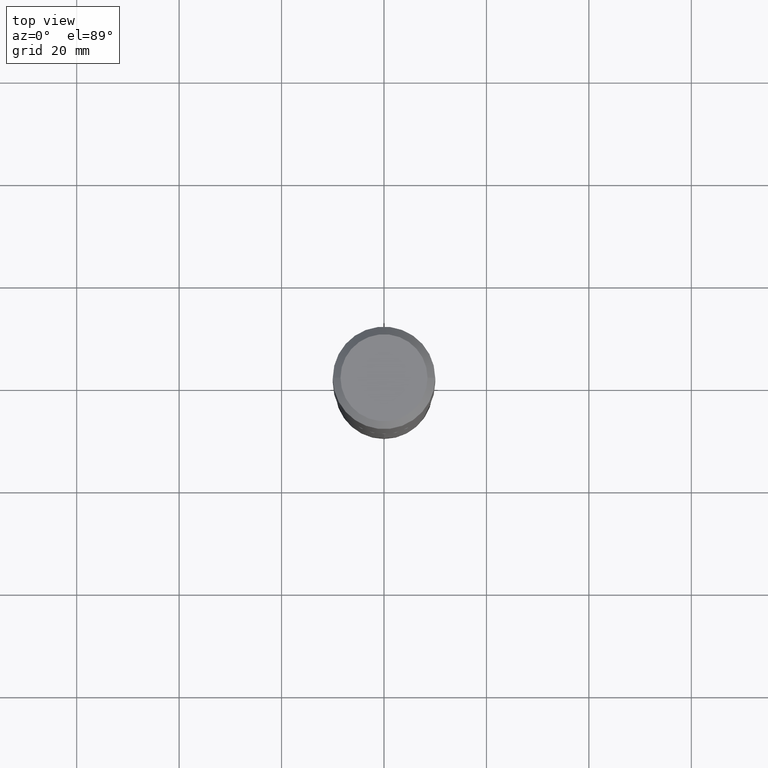
[diagram: clean part render]
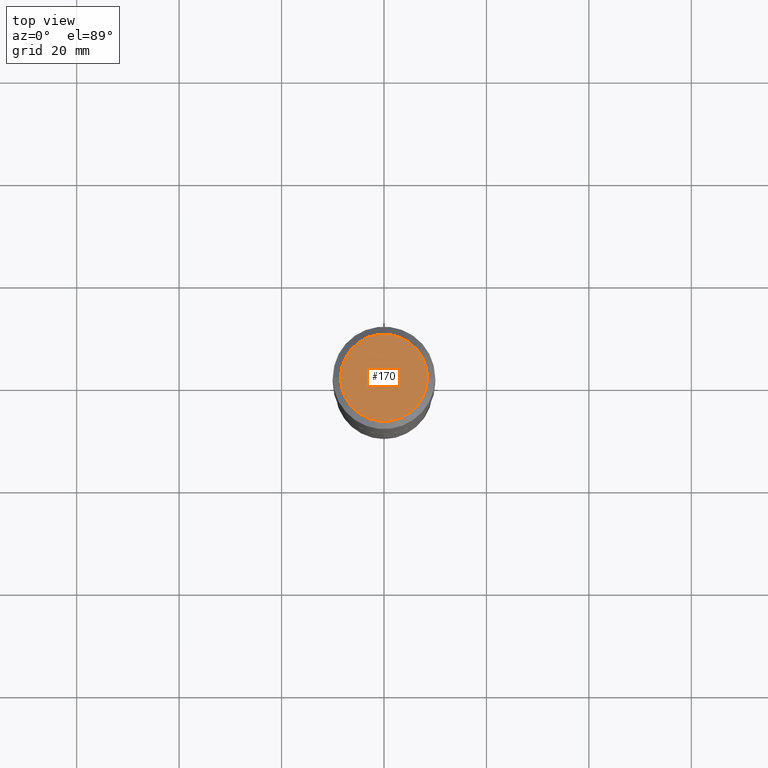
[diagram: same view with one face highlighted and labeled with its STEP entity id]
A machine part, top view. The second image highlights one B-rep face of the part: STEP entity #170.
In plain terms, the highlighted planar face has unit normal (0, -0, -1).
Its self-contained STEP definition (entity closure, byte-faithful):
#7 = DIRECTION ( 'NONE',  ( -2.445468806185136597E-29, 3.491481338843145583E-15, 1.000000000000000000 ) ) ;
#16 = FACE_OUTER_BOUND ( 'NONE', #37, .T. ) ;
#17 = AXIS2_PLACEMENT_3D ( 'NONE', #338, #113, #45 ) ;
#22 = DIRECTION ( 'NONE',  ( 1.000000000000000000, -6.982962677686267499E-15, 4.876152824003125403E-29 ) ) ;
#36 = CARTESIAN_POINT ( 'NONE',  ( 0.3346450000000000258, -2.601499422326145188E-15, 4.096137381465387809E-18 ) ) ;
#37 = EDGE_LOOP ( 'NONE', ( #254, #50 ) ) ;
#43 = CIRCLE ( 'NONE', #445, 0.3346450000000000258 ) ;
#45 = DIRECTION ( 'NONE',  ( -1.000000000000000000, 6.982962677686265922E-15, -4.876176775795935793E-29 ) ) ;
#50 = ORIENTED_EDGE ( 'NONE', *, *, #265, .T. ) ;
#54 = CARTESIAN_POINT ( 'NONE',  ( -0.3346450000000000258, 2.439908260507010921E-15, 4.096137381431418257E-18 ) ) ;
#107 = AXIS2_PLACEMENT_3D ( 'NONE', #126, #7, #437 ) ;
#113 = DIRECTION ( 'NONE',  ( 2.438088387897960049E-29, -3.491481338843145188E-15, -1.000000000000000000 ) ) ;
#126 = CARTESIAN_POINT ( 'NONE',  ( -1.001697619218024707E-46, 1.430158722866394097E-32, 4.096137381448120692E-18 ) ) ;
#127 = PLANE ( 'NONE',  #17 ) ;
#128 = EDGE_CURVE ( 'NONE', #146, #391, #188, .T. ) ;
#146 = VERTEX_POINT ( 'NONE', #54 ) ;
#170 = ADVANCED_FACE ( 'NONE', ( #16 ), #127, .F. ) ;
#188 = CIRCLE ( 'NONE', #107, 0.3346450000000000258 ) ;
#210 = CARTESIAN_POINT ( 'NONE',  ( -1.001697619218024707E-46, 1.430158722866394097E-32, 4.096137381448120692E-18 ) ) ;
#254 = ORIENTED_EDGE ( 'NONE', *, *, #128, .T. ) ;
#265 = EDGE_CURVE ( 'NONE', #391, #146, #43, .T. ) ;
#338 = CARTESIAN_POINT ( 'NONE',  ( -5.008488096090123536E-47, 7.150793614331970485E-33, 2.048068690724060346E-18 ) ) ;
#347 = DIRECTION ( 'NONE',  ( -2.445468806185136597E-29, 3.491481338843145583E-15, 1.000000000000000000 ) ) ;
#391 = VERTEX_POINT ( 'NONE', #36 ) ;
#437 = DIRECTION ( 'NONE',  ( 1.000000000000000000, -6.982962677686267499E-15, 4.876152824003125403E-29 ) ) ;
#445 = AXIS2_PLACEMENT_3D ( 'NONE', #210, #347, #22 ) ;